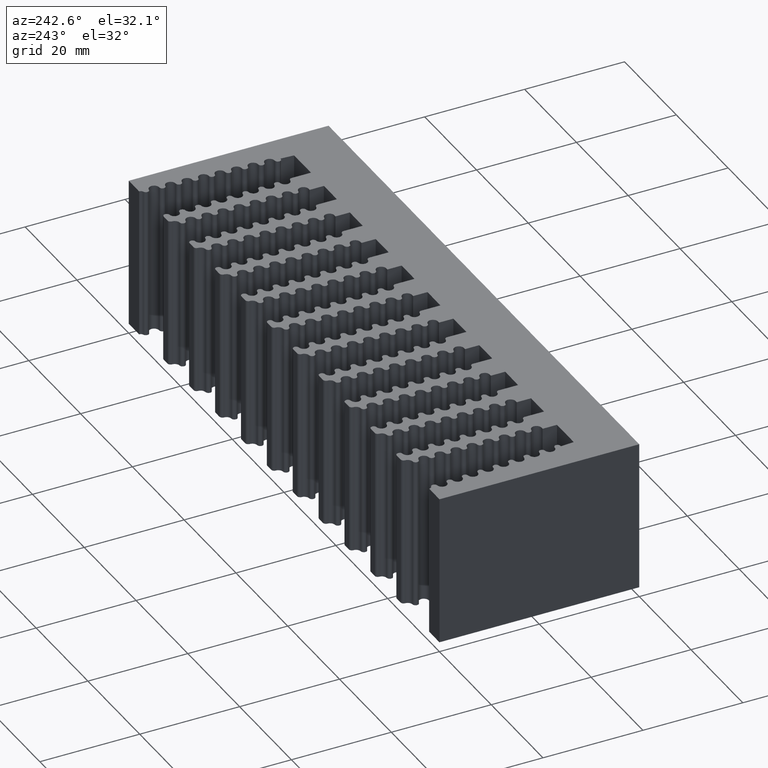
[diagram: clean part render]
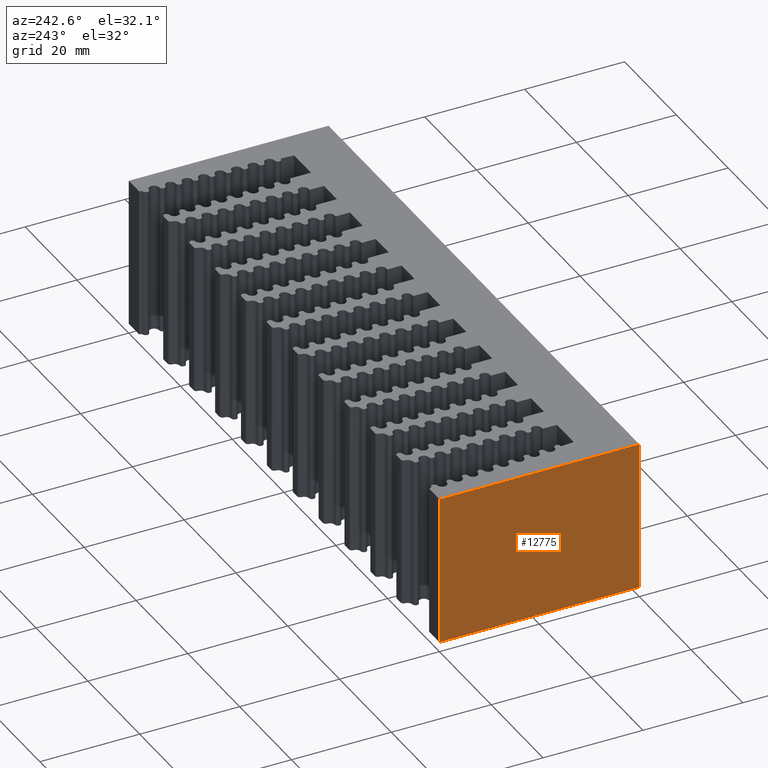
[diagram: same view with one face highlighted and labeled with its STEP entity id]
A machine part, auxiliary view. The second image highlights one B-rep face of the part: STEP entity #12775.
In plain terms, the highlighted planar face has unit normal (-1, 0, 0).
Its self-contained STEP definition (entity closure, byte-faithful):
#189 = CARTESIAN_POINT ( 'NONE',  ( 0.0000000000000000000, 0.0000000000000000000, -30.00000000000000000 ) ) ;
#826 = DIRECTION ( 'NONE',  ( 0.0000000000000000000, -1.000000000000000000, 0.0000000000000000000 ) ) ;
#1231 = DIRECTION ( 'NONE',  ( 0.0000000000000000000, 0.0000000000000000000, 1.000000000000000000 ) ) ;
#1676 = DIRECTION ( 'NONE',  ( 0.0000000000000000000, 0.0000000000000000000, 1.000000000000000000 ) ) ;
#2433 = VERTEX_POINT ( 'NONE', #19413 ) ;
#3324 = EDGE_CURVE ( 'NONE', #2433, #19205, #14400, .T. ) ;
#5783 = AXIS2_PLACEMENT_3D ( 'NONE', #19893, #7738, #1231 ) ;
#6904 = LINE ( 'NONE', #189, #13112 ) ;
#6994 = EDGE_CURVE ( 'NONE', #19205, #17875, #6904, .T. ) ;
#7738 = DIRECTION ( 'NONE',  ( -1.000000000000000000, 0.0000000000000000000, 0.0000000000000000000 ) ) ;
#10160 = DIRECTION ( 'NONE',  ( 0.0000000000000000000, -1.000000000000000000, 0.0000000000000000000 ) ) ;
#10306 = ORIENTED_EDGE ( 'NONE', *, *, #3324, .T. ) ;
#10510 = EDGE_CURVE ( 'NONE', #2433, #16765, #18674, .T. ) ;
#10644 = CARTESIAN_POINT ( 'NONE',  ( 0.0000000000000000000, 40.00000000000000000, -30.00000000000000000 ) ) ;
#10977 = CARTESIAN_POINT ( 'NONE',  ( 0.0000000000000000000, 0.0000000000000000000, -30.00000000000000000 ) ) ;
#11272 = VECTOR ( 'NONE', #1676, 1000.000000000000000 ) ;
#11367 = VECTOR ( 'NONE', #826, 1000.000000000000000 ) ;
#11492 = ORIENTED_EDGE ( 'NONE', *, *, #17205, .F. ) ;
#11714 = CARTESIAN_POINT ( 'NONE',  ( 0.0000000000000000000, 40.00000000000000000, 0.0000000000000000000 ) ) ;
#12254 = EDGE_LOOP ( 'NONE', ( #11492, #12981, #10306, #21531 ) ) ;
#12420 = CARTESIAN_POINT ( 'NONE',  ( 0.0000000000000000000, 0.0000000000000000000, 0.0000000000000000000 ) ) ;
#12775 = ADVANCED_FACE ( 'NONE', ( #19771 ), #20003, .T. ) ;
#12981 = ORIENTED_EDGE ( 'NONE', *, *, #10510, .F. ) ;
#13112 = VECTOR ( 'NONE', #14974, 1000.000000000000000 ) ;
#14400 = LINE ( 'NONE', #10644, #11367 ) ;
#14974 = DIRECTION ( 'NONE',  ( 0.0000000000000000000, 0.0000000000000000000, 1.000000000000000000 ) ) ;
#16658 = LINE ( 'NONE', #20086, #16794 ) ;
#16765 = VERTEX_POINT ( 'NONE', #11714 ) ;
#16794 = VECTOR ( 'NONE', #10160, 1000.000000000000000 ) ;
#16814 = CARTESIAN_POINT ( 'NONE',  ( 0.0000000000000000000, 40.00000000000000000, -30.00000000000000000 ) ) ;
#17205 = EDGE_CURVE ( 'NONE', #16765, #17875, #16658, .T. ) ;
#17875 = VERTEX_POINT ( 'NONE', #12420 ) ;
#18674 = LINE ( 'NONE', #16814, #11272 ) ;
#19205 = VERTEX_POINT ( 'NONE', #10977 ) ;
#19413 = CARTESIAN_POINT ( 'NONE',  ( 0.0000000000000000000, 40.00000000000000000, -30.00000000000000000 ) ) ;
#19771 = FACE_OUTER_BOUND ( 'NONE', #12254, .T. ) ;
#19893 = CARTESIAN_POINT ( 'NONE',  ( 0.0000000000000000000, 40.00000000000000000, -30.00000000000000000 ) ) ;
#20003 = PLANE ( 'NONE',  #5783 ) ;
#20086 = CARTESIAN_POINT ( 'NONE',  ( 0.0000000000000000000, 40.00000000000000000, 0.0000000000000000000 ) ) ;
#21531 = ORIENTED_EDGE ( 'NONE', *, *, #6994, .T. ) ;